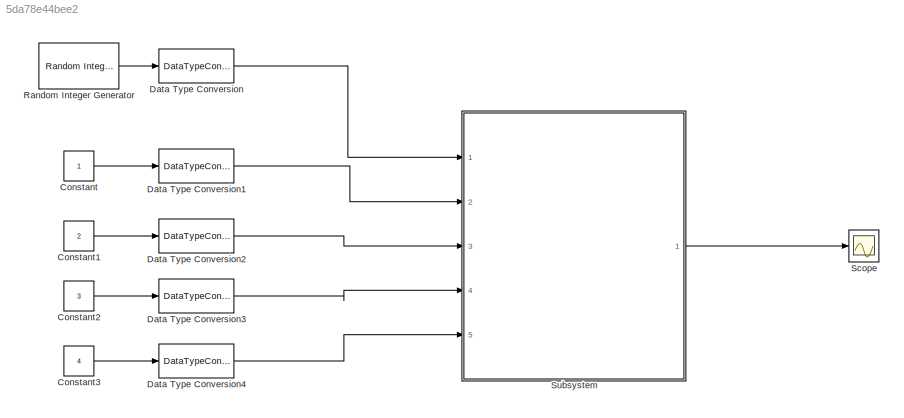
MODEL slx_5da78e44bee2
KIND model
CONFIG AbsTol = auto
CONFIG EnableMultiTasking = off
CONFIG FixedStep = auto
CONFIG MaxStep = auto
CONFIG MinStep = auto
CONFIG RelTol = 1e-3
CONFIG SampleTimeConstraint = Unconstrained
CONFIG Solver = VariableStepAuto
CONFIG SolverName = VariableStepAuto
CONFIG StartTime = 0.0
CONFIG StopTime = 10.0
BLOCK [Constant] Constant
BLOCK [Constant] Constant1
  Value = 2
BLOCK [Constant] Constant2
  Value = 3
BLOCK [Constant] Constant3
  Value = 4
BLOCK [DataTypeConversion] Data Type Conversion
  OutDataTypeStr = fixdt(0,2)
  OutMax = 3
  OutMin = 0
  RndMeth = Floor
  SaturateOnIntegerOverflow = off
BLOCK [DataTypeConversion] Data Type Conversion1
  OutDataTypeStr = fixdt(0,2)
  OutMax = 1
  OutMin = 1
  RndMeth = Floor
  SaturateOnIntegerOverflow = off
BLOCK [DataTypeConversion] Data Type Conversion2
  OutDataTypeStr = fixdt(0,2)
  OutMax = 2
  OutMin = 2
  RndMeth = Floor
  SaturateOnIntegerOverflow = off
BLOCK [DataTypeConversion] Data Type Conversion3
  OutDataTypeStr = fixdt(0,2)
  OutMax = 3
  OutMin = 3
  RndMeth = Floor
  SaturateOnIntegerOverflow = off
BLOCK [DataTypeConversion] Data Type Conversion4
  OutDataTypeStr = fixdt(0,3)
  OutMax = 4
  OutMin = 4
  RndMeth = Floor
  SaturateOnIntegerOverflow = off
BLOCK [Reference] Random Integer Generator  REF=commrandsrc3/Random Integer
Generator
  Ports = [0, 1]
  SourceBlock = commrandsrc3/Random Integer\nGenerator
  SourceProductBaseCode = CM
  SourceProductName = Communications System Toolbox
  SourceType = Random Integer Generator
BLOCK [Scope] Scope
  NumInputPorts = 1
  Ports = [1]
  ScopeSpecificationString = Simulink.scopes.TimeScopeBlockCfg('CurrentConfiguration', extmgr.ConfigurationSet(extmgr.Configuration('Core','General UI',true),extmgr.Configuration('Core','Source UI',true),extmgr.Configuration('Sources','WiredSimulink',true),extmgr.Configuration('Visuals','Time Domain',true,'SerializedDisplays',{struct('MinYLimReal','0.625','MaxYLimReal','4.375','YLabelReal','','MinYLimMag','0.625','MaxYLimMag'...<+1311ch>
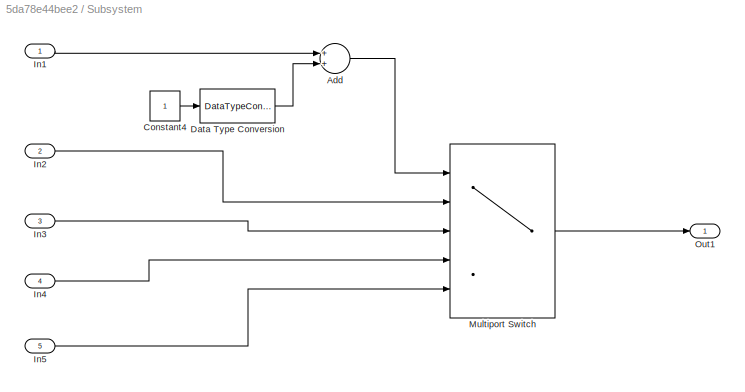
BLOCK [SubSystem] Subsystem
  Ports = [5, 1]
  RequestExecContextInheritance = off
  Variant = off
BLOCK [Sum] Subsystem/Add
  InputSameDT = off
  OutDataTypeStr = fixdt(0,3)
  OutMax = 4
  OutMin = 1
  Ports = [2, 1]
  SaturateOnIntegerOverflow = off
BLOCK [Constant] Subsystem/Constant4
  OutDataTypeStr = fixdt(0,2)
  OutMax = 1
  OutMin = 1
BLOCK [DataTypeConversion] Subsystem/Data Type Conversion
  OutDataTypeStr = fixdt(0,2)
  OutMax = 1
  OutMin = 1
  RndMeth = Floor
  SaturateOnIntegerOverflow = off
BLOCK [Inport] Subsystem/In1
  IconDisplay = Port number
BLOCK [Inport] Subsystem/In2
  IconDisplay = Port number
  Port = 2
BLOCK [Inport] Subsystem/In3
  IconDisplay = Port number
  Port = 3
BLOCK [Inport] Subsystem/In4
  IconDisplay = Port number
  Port = 4
BLOCK [Inport] Subsystem/In5
  IconDisplay = Port number
  Port = 5
BLOCK [MultiPortSwitch] Subsystem/Multiport Switch
  DataPortIndices = {1,2,3,4}
  InputSameDT = off
  Inputs = 4
  OutDataTypeStr = fixdt(0,3)
  OutMax = 4
  OutMin = 1
  Ports = [5, 1]
  SaturateOnIntegerOverflow = off
BLOCK [Outport] Subsystem/Out1
  IconDisplay = Port number
LINE Constant1:1 -> Data Type Conversion2:1
LINE Constant2:1 -> Data Type Conversion3:1
LINE Constant3:1 -> Data Type Conversion4:1
LINE Constant:1 -> Data Type Conversion1:1
LINE Data Type Conversion1:1 -> Subsystem:2
LINE Data Type Conversion2:1 -> Subsystem:3
LINE Data Type Conversion3:1 -> Subsystem:4
LINE Data Type Conversion4:1 -> Subsystem:5
LINE Data Type Conversion:1 -> Subsystem:1
LINE Random Integer Generator:1 -> Data Type Conversion:1
LINE Subsystem/Add:1 -> Subsystem/Multiport Switch:1
LINE Subsystem/Constant4:1 -> Subsystem/Data Type Conversion:1
LINE Subsystem/Data Type Conversion:1 -> Subsystem/Add:2
LINE Subsystem/In1:1 -> Subsystem/Add:1
LINE Subsystem/In2:1 -> Subsystem/Multiport Switch:2
LINE Subsystem/In3:1 -> Subsystem/Multiport Switch:3
LINE Subsystem/In4:1 -> Subsystem/Multiport Switch:4
LINE Subsystem/In5:1 -> Subsystem/Multiport Switch:5
LINE Subsystem/Multiport Switch:1 -> Subsystem/Out1:1
LINE Subsystem:1 -> Scope:1
